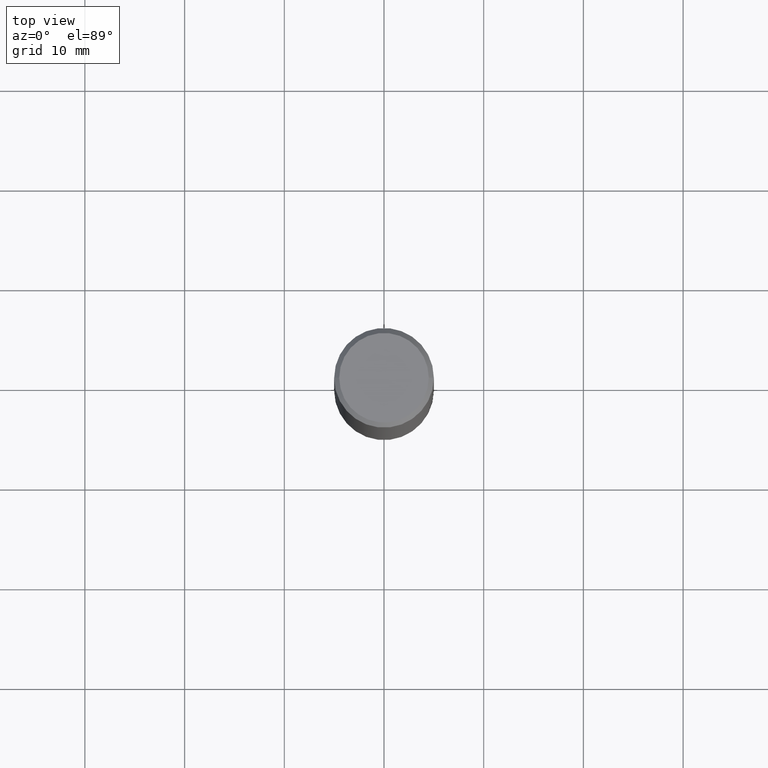
[diagram: clean part render]
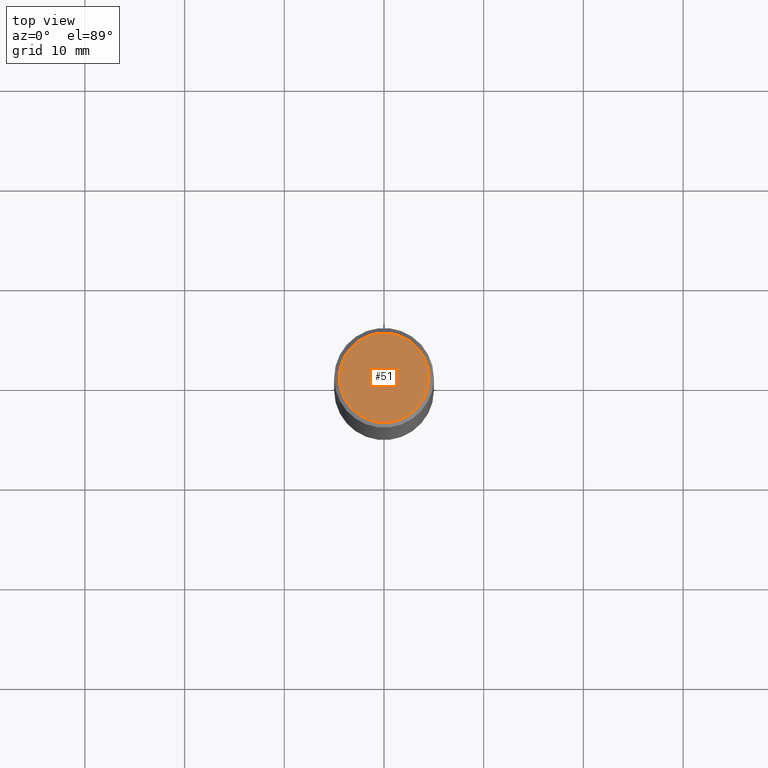
[diagram: same view with one face highlighted and labeled with its STEP entity id]
A machine part, top view. The second image highlights one B-rep face of the part: STEP entity #51.
In plain terms, the highlighted planar face has unit normal (0, -0, -1).
Its self-contained STEP definition (entity closure, byte-faithful):
#32 = CIRCLE ( 'NONE', #119, 0.1768499999999997851 ) ;
#44 = CARTESIAN_POINT ( 'NONE',  ( -0.1768499999999997851, 1.269851762937246069E-15, 4.268512490091652920E-18 ) ) ;
#51 = ADVANCED_FACE ( 'NONE', ( #160 ), #197, .F. ) ;
#108 = ORIENTED_EDGE ( 'NONE', *, *, #116, .T. ) ;
#116 = EDGE_CURVE ( 'NONE', #277, #184, #241, .T. ) ;
#119 = AXIS2_PLACEMENT_3D ( 'NONE', #205, #291, #297 ) ;
#121 = CARTESIAN_POINT ( 'NONE',  ( -1.043851414335219820E-46, 1.490343170380447200E-32, 4.268512490100411279E-18 ) ) ;
#133 = DIRECTION ( 'NONE',  ( 2.438088387897960049E-29, -3.491481338843145188E-15, -1.000000000000000000 ) ) ;
#160 = FACE_OUTER_BOUND ( 'NONE', #346, .T. ) ;
#184 = VERTEX_POINT ( 'NONE', #203 ) ;
#197 = PLANE ( 'NONE',  #278 ) ;
#198 = EDGE_CURVE ( 'NONE', #184, #277, #32, .T. ) ;
#201 = ORIENTED_EDGE ( 'NONE', *, *, #198, .T. ) ;
#203 = CARTESIAN_POINT ( 'NONE',  ( 0.1768499999999997851, -1.316798864272040563E-15, 4.268512490109333727E-18 ) ) ;
#205 = CARTESIAN_POINT ( 'NONE',  ( -1.043851414335219820E-46, 1.490343170380447200E-32, 4.268512490100411279E-18 ) ) ;
#241 = CIRCLE ( 'NONE', #287, 0.1768499999999997851 ) ;
#242 = DIRECTION ( 'NONE',  ( 1.000000000000000000, -6.982962677686266711E-15, 4.875932113059884174E-29 ) ) ;
#261 = DIRECTION ( 'NONE',  ( -2.445468806185136597E-29, 3.491481338843145583E-15, 1.000000000000000000 ) ) ;
#277 = VERTEX_POINT ( 'NONE', #44 ) ;
#278 = AXIS2_PLACEMENT_3D ( 'NONE', #356, #133, #359 ) ;
#287 = AXIS2_PLACEMENT_3D ( 'NONE', #121, #261, #242 ) ;
#291 = DIRECTION ( 'NONE',  ( -2.445468806185136597E-29, 3.491481338843145583E-15, 1.000000000000000000 ) ) ;
#297 = DIRECTION ( 'NONE',  ( 1.000000000000000000, -6.982962677686266711E-15, 4.875932113059884174E-29 ) ) ;
#346 = EDGE_LOOP ( 'NONE', ( #108, #201 ) ) ;
#356 = CARTESIAN_POINT ( 'NONE',  ( 1.234936949548814617E-15, 0.1768499999999997851, -6.153342185293593634E-16 ) ) ;
#359 = DIRECTION ( 'NONE',  ( -1.000000000000000000, 6.982962677686265922E-15, -4.876176775795935793E-29 ) ) ;